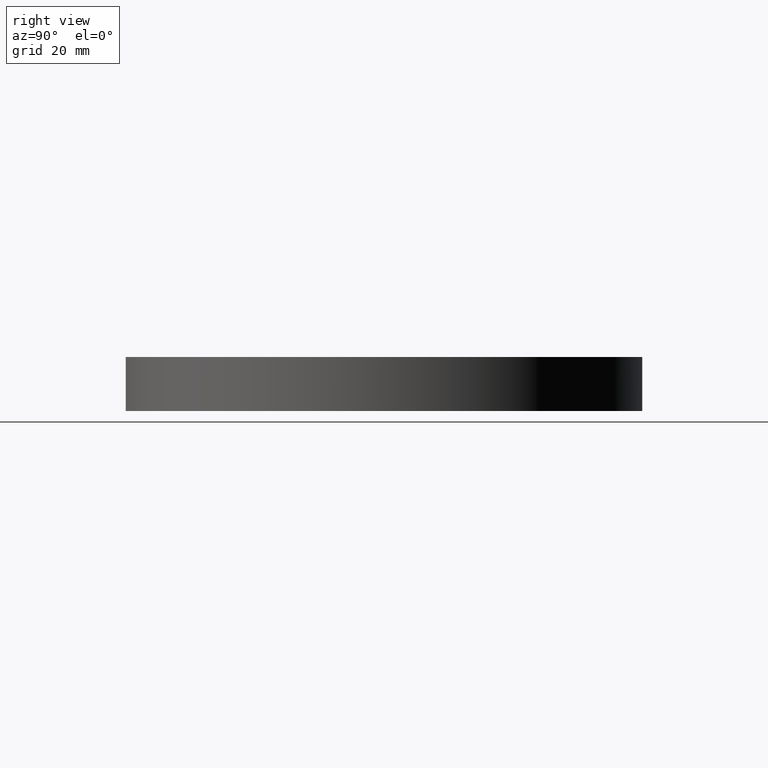
[diagram: clean part render]
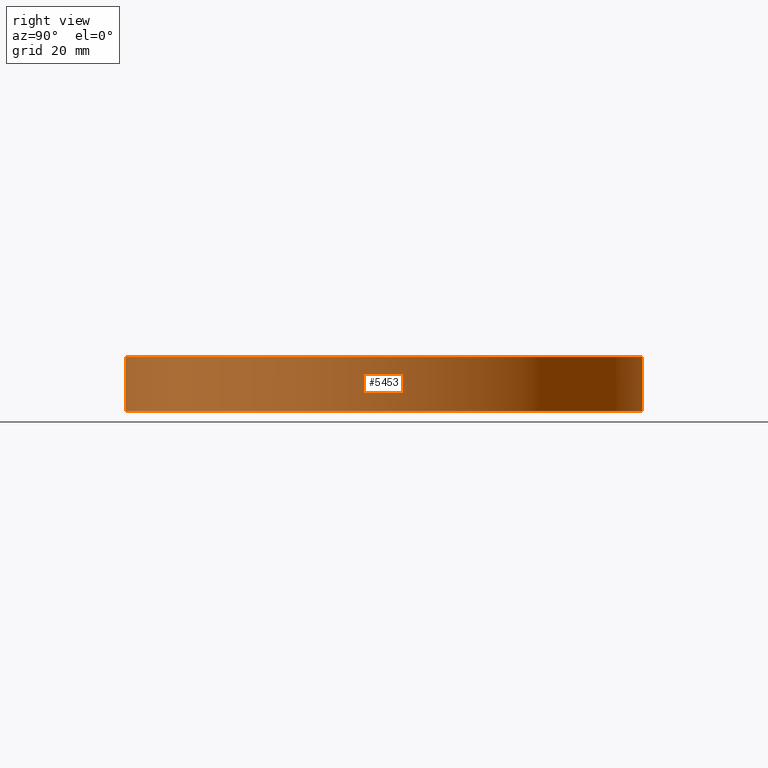
[diagram: same view with one face highlighted and labeled with its STEP entity id]
A machine part, right view. The second image highlights one B-rep face of the part: STEP entity #5453.
In plain terms, the highlighted cylindrical surface (partial cylindrical patch) has radius 57.5 mm, axis along (-0, -0, -1).
Its self-contained STEP definition (entity closure, byte-faithful):
#49 = LINE ( 'NONE', #2658, #4932 ) ;
#275 = CARTESIAN_POINT ( 'NONE',  ( 0.5000000000000000000, 57.49782604586020800, -6.000000000000001800 ) ) ;
#334 = AXIS2_PLACEMENT_3D ( 'NONE', #5972, #4982, #5927 ) ;
#1315 = DIRECTION ( 'NONE',  ( -0.0000000000000000000, -0.0000000000000000000, -1.000000000000000000 ) ) ;
#1421 = EDGE_CURVE ( 'NONE', #4991, #10417, #7344, .T. ) ;
#1762 = CARTESIAN_POINT ( 'NONE',  ( 0.0000000000000000000, 0.0000000000000000000, 5.999999999999998200 ) ) ;
#1917 = VERTEX_POINT ( 'NONE', #7279 ) ;
#2064 = DIRECTION ( 'NONE',  ( -0.0000000000000000000, -0.0000000000000000000, 1.000000000000000000 ) ) ;
#2653 = CARTESIAN_POINT ( 'NONE',  ( -0.5000000000000000000, 57.49782604586020800, -6.000000000000001800 ) ) ;
#2658 = CARTESIAN_POINT ( 'NONE',  ( -0.5000000000000000000, 57.49782604586020800, -6.000000000000001800 ) ) ;
#4070 = CARTESIAN_POINT ( 'NONE',  ( 0.0000000000000000000, 0.0000000000000000000, -6.000000000000001800 ) ) ;
#4513 = EDGE_CURVE ( 'NONE', #10417, #1917, #8435, .T. ) ;
#4666 = AXIS2_PLACEMENT_3D ( 'NONE', #4070, #1315, #11138 ) ;
#4932 = VECTOR ( 'NONE', #8904, 1000.000000000000000 ) ;
#4982 = DIRECTION ( 'NONE',  ( -0.0000000000000000000, -0.0000000000000000000, -1.000000000000000000 ) ) ;
#4991 = VERTEX_POINT ( 'NONE', #8292 ) ;
#5453 = ADVANCED_FACE ( 'NONE', ( #8842 ), #6480, .T. ) ;
#5485 = DIRECTION ( 'NONE',  ( -1.000000000000000000, 0.0000000000000000000, 0.0000000000000000000 ) ) ;
#5927 = DIRECTION ( 'NONE',  ( -1.000000000000000000, 0.0000000000000000000, 0.0000000000000000000 ) ) ;
#5972 = CARTESIAN_POINT ( 'NONE',  ( 0.0000000000000000000, 0.0000000000000000000, 0.0000000000000000000 ) ) ;
#6311 = EDGE_CURVE ( 'NONE', #6976, #1917, #49, .T. ) ;
#6480 = CYLINDRICAL_SURFACE ( 'NONE', #334, 57.50000000000000000 ) ;
#6976 = VERTEX_POINT ( 'NONE', #2653 ) ;
#7279 = CARTESIAN_POINT ( 'NONE',  ( -0.5000000000000000000, 57.49782604586020800, 6.000000000000000900 ) ) ;
#7344 = LINE ( 'NONE', #275, #11493 ) ;
#7838 = ORIENTED_EDGE ( 'NONE', *, *, #1421, .T. ) ;
#8241 = EDGE_LOOP ( 'NONE', ( #8974, #7838, #8911, #9964 ) ) ;
#8292 = CARTESIAN_POINT ( 'NONE',  ( 0.5000000000000000000, 57.49782604586020800, -6.000000000000001800 ) ) ;
#8435 = CIRCLE ( 'NONE', #9200, 57.50000000000000000 ) ;
#8789 = EDGE_CURVE ( 'NONE', #4991, #6976, #10755, .T. ) ;
#8842 = FACE_OUTER_BOUND ( 'NONE', #8241, .T. ) ;
#8904 = DIRECTION ( 'NONE',  ( -0.0000000000000000000, -0.0000000000000000000, 1.000000000000000000 ) ) ;
#8911 = ORIENTED_EDGE ( 'NONE', *, *, #4513, .T. ) ;
#8974 = ORIENTED_EDGE ( 'NONE', *, *, #8789, .F. ) ;
#9200 = AXIS2_PLACEMENT_3D ( 'NONE', #1762, #10737, #5485 ) ;
#9964 = ORIENTED_EDGE ( 'NONE', *, *, #6311, .F. ) ;
#10417 = VERTEX_POINT ( 'NONE', #10802 ) ;
#10737 = DIRECTION ( 'NONE',  ( -0.0000000000000000000, -0.0000000000000000000, -1.000000000000000000 ) ) ;
#10755 = CIRCLE ( 'NONE', #4666, 57.50000000000000000 ) ;
#10802 = CARTESIAN_POINT ( 'NONE',  ( 0.5000000000000000000, 57.49782604586020800, 5.999999999999998200 ) ) ;
#11138 = DIRECTION ( 'NONE',  ( -1.000000000000000000, 0.0000000000000000000, 0.0000000000000000000 ) ) ;
#11493 = VECTOR ( 'NONE', #2064, 1000.000000000000000 ) ;